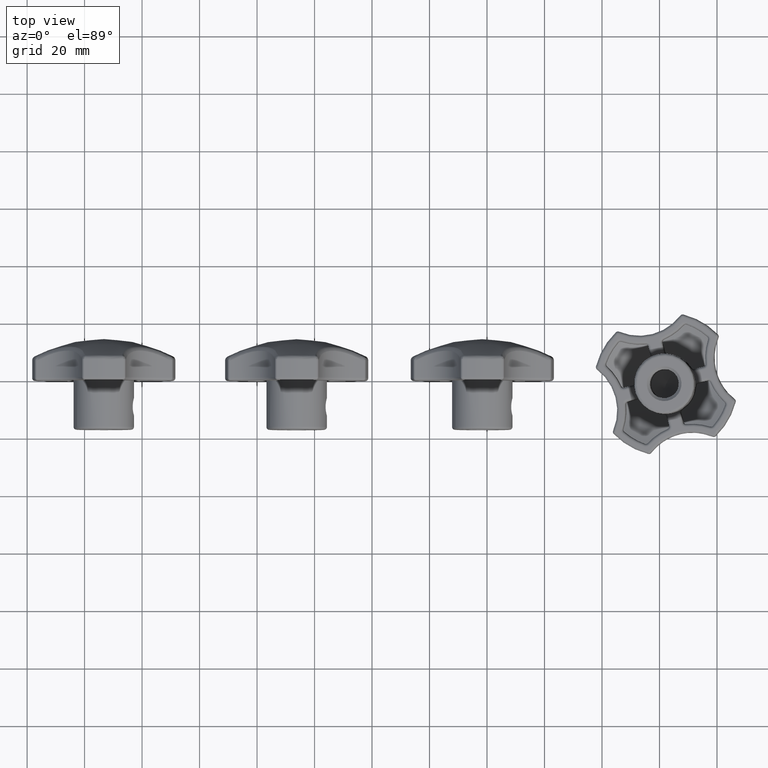
[diagram: clean part render]
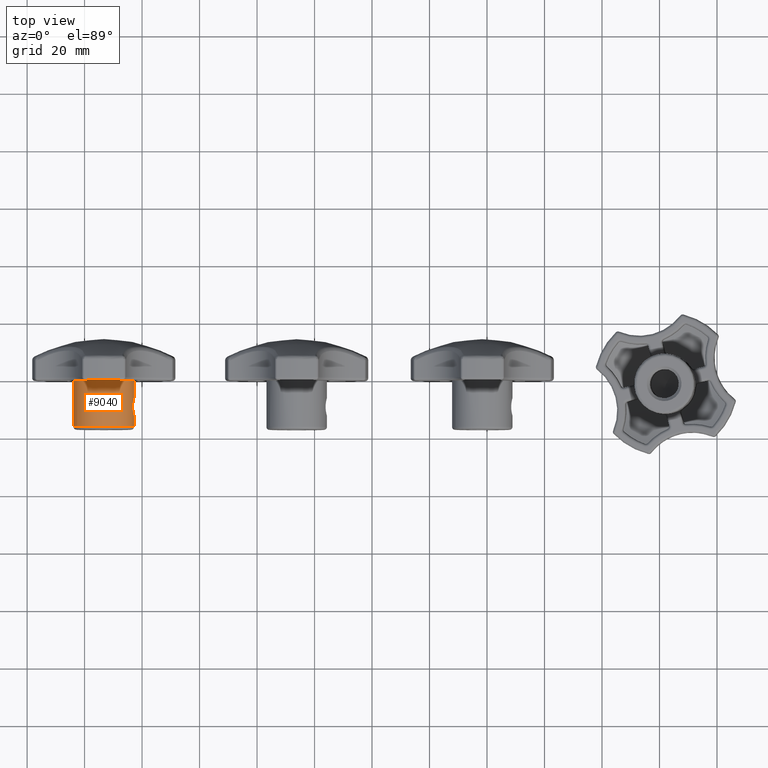
[diagram: same view with one face highlighted and labeled with its STEP entity id]
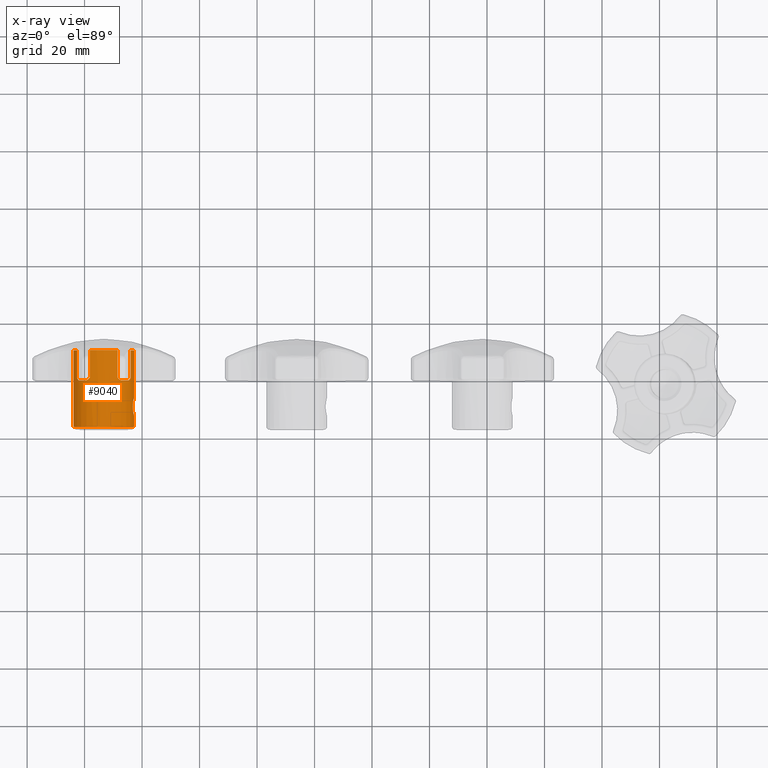
[diagram: x-ray of the same camera — body ghosted, the highlighted face saturated]
A machine part, top view. The second image highlights one B-rep face of the part: STEP entity #9040.
The next image is the same camera in x-ray: the body ghosted, the highlighted face saturated — about 0% of this face is hidden behind the body in this view.
In plain terms, the highlighted cylindrical surface (bore or boss wall) has radius 10.5 mm, axis along (0, 1, 0).
Its self-contained STEP definition (entity closure, byte-faithful):
#339=FACE_BOUND('',#2065,.T.);
#340=FACE_BOUND('',#2066,.T.);
#375=CIRCLE('',#9677,10.5);
#376=CIRCLE('',#9678,10.5);
#377=CIRCLE('',#9679,10.5);
#378=CIRCLE('',#9680,10.5);
#379=CIRCLE('',#9681,10.5);
#380=CIRCLE('',#9682,10.5);
#381=CIRCLE('',#9683,10.5);
#382=CIRCLE('',#9684,10.5);
#383=CIRCLE('',#9685,10.5);
#1179=CYLINDRICAL_SURFACE('',#9676,10.5);
#1432=FACE_OUTER_BOUND('',#2064,.T.);
#2064=EDGE_LOOP('',(#6039,#6040,#6041,#6042,#6043,#6044,#6045,#6046,#6047,
#6048,#6049,#6050,#6051,#6052,#6053,#6054,#6055,#6056,#6057,#6058,#6059,
#6060,#6061,#6062));
#2065=EDGE_LOOP('',(#6063));
#2066=EDGE_LOOP('',(#6064));
#2732=B_SPLINE_CURVE_WITH_KNOTS('',3,(#14191,#14192,#14193,#14194,#14195,
#14196,#14197,#14198,#14199,#14200,#14201,#14202,#14203,#14204,#14205,#14206,
#14207,#14208,#14209,#14210,#14211),.UNSPECIFIED.,.T.,.F.,(4,1,1,1,1,1,
1,1,1,1,1,1,1,1,1,1,1,1,4),(-1.24929405747455,-1.16005876765494,-1.11544112274514,
-1.07082347783533,-0.981588188015721,-0.89235289819611,-0.803117608376499,
-0.758499963466693,-0.713882318556888,-0.624647028737277,-0.535411738917666,
-0.49079409400786,-0.446176449098055,-0.356941159278444,-0.267705869458833,
-0.178470579639222,-0.133852934729416,-0.0892352898196109,1.01192568546677E-16),
 .UNSPECIFIED.);
#2733=B_SPLINE_CURVE_WITH_KNOTS('',3,(#14217,#14218,#14219,#14220,#14221,
#14222,#14223,#14224,#14225,#14226),.UNSPECIFIED.,.F.,.F.,(4,2,2,2,4),(0.312380657515468,
0.339049784358982,0.375862714295916,0.440476614903262,0.440865628322796),
 .UNSPECIFIED.);
#2734=B_SPLINE_CURVE_WITH_KNOTS('',3,(#14234,#14235,#14236,#14237,#14238,
#14239,#14240,#14241,#14242,#14243),.UNSPECIFIED.,.F.,.F.,(4,2,2,2,4),(-0.000447213659651916,
0.,0.0742807769218567,0.116601284004013,0.14726037507309),.UNSPECIFIED.);
#2735=B_SPLINE_CURVE_WITH_KNOTS('',3,(#14247,#14248,#14249,#14250,#14251,
#14252,#14253,#14254,#14255,#14256),.UNSPECIFIED.,.F.,.F.,(4,2,2,2,4),(0.312380654878585,
0.339049781483938,0.375862711092125,0.440476611104976,0.440865624519875),
 .UNSPECIFIED.);
#2736=B_SPLINE_CURVE_WITH_KNOTS('',3,(#14264,#14265,#14266,#14267,#14268,
#14269,#14270,#14271,#14272,#14273),.UNSPECIFIED.,.F.,.F.,(4,2,2,2,4),(-0.000447213664884517,
0.,0.0742808029453884,0.11660133066451,0.147260436684043),.UNSPECIFIED.);
#2737=B_SPLINE_CURVE_WITH_KNOTS('',3,(#14277,#14278,#14279,#14280,#14281,
#14282,#14283,#14284,#14285,#14286),.UNSPECIFIED.,.F.,.F.,(4,2,2,2,4),(0.312381928980434,
0.33905117065849,0.375864259108173,0.440478412403289,0.440867426965773),
 .UNSPECIFIED.);
#2738=B_SPLINE_CURVE_WITH_KNOTS('',3,(#14294,#14295,#14296,#14297,#14298,
#14299,#14300,#14301,#14302,#14303),.UNSPECIFIED.,.F.,.F.,(4,2,2,2,4),(-0.000447213662700822,
0.,0.0742807897796529,0.116601307058186,0.147260405514038),
 .UNSPECIFIED.);
#2739=B_SPLINE_CURVE_WITH_KNOTS('',3,(#14307,#14308,#14309,#14310,#14311,
#14312,#14313,#14314,#14315,#14316),.UNSPECIFIED.,.F.,.F.,(4,2,2,2,4),(0.312381295545614,
0.339050480013902,0.375863489493622,0.440477516877786,0.440866530870201),
 .UNSPECIFIED.);
#2740=B_SPLINE_CURVE_WITH_KNOTS('',3,(#14323,#14324,#14325,#14326,#14327,
#14328,#14329,#14330,#14331,#14332),.UNSPECIFIED.,.F.,.F.,(4,2,2,2,4),(-0.00044721365583282,
0.,0.0742807639072316,0.116601260668674,0.147260344260911),
 .UNSPECIFIED.);
#3064=LINE('',#14228,#3388);
#3065=LINE('',#14232,#3389);
#3066=LINE('',#14258,#3390);
#3067=LINE('',#14262,#3391);
#3068=LINE('',#14288,#3392);
#3069=LINE('',#14292,#3393);
#3070=LINE('',#14318,#3394);
#3071=LINE('',#14322,#3395);
#3388=VECTOR('',#11043,9.51190340879282);
#3389=VECTOR('',#11046,9.51190340879282);
#3390=VECTOR('',#11049,9.51190340879282);
#3391=VECTOR('',#11052,9.51190340879282);
#3392=VECTOR('',#11055,9.51190340879282);
#3393=VECTOR('',#11058,9.51190340879282);
#3394=VECTOR('',#11061,9.51190340879282);
#3395=VECTOR('',#11064,9.51190340879282);
#3711=VERTEX_POINT('',#14167);
#3713=VERTEX_POINT('',#14213);
#3714=VERTEX_POINT('',#14214);
#3715=VERTEX_POINT('',#14216);
#3716=VERTEX_POINT('',#14227);
#3717=VERTEX_POINT('',#14229);
#3718=VERTEX_POINT('',#14231);
#3719=VERTEX_POINT('',#14233);
#3720=VERTEX_POINT('',#14244);
#3721=VERTEX_POINT('',#14246);
#3722=VERTEX_POINT('',#14257);
#3723=VERTEX_POINT('',#14259);
#3724=VERTEX_POINT('',#14261);
#3725=VERTEX_POINT('',#14263);
#3726=VERTEX_POINT('',#14274);
#3727=VERTEX_POINT('',#14276);
#3728=VERTEX_POINT('',#14287);
#3729=VERTEX_POINT('',#14289);
#3730=VERTEX_POINT('',#14291);
#3731=VERTEX_POINT('',#14293);
#3732=VERTEX_POINT('',#14304);
#3733=VERTEX_POINT('',#14306);
#3734=VERTEX_POINT('',#14317);
#3735=VERTEX_POINT('',#14319);
#3736=VERTEX_POINT('',#14321);
#3737=VERTEX_POINT('',#14333);
#4577=EDGE_CURVE('',#3711,#3711,#2732,.T.);
#4578=EDGE_CURVE('',#3713,#3714,#375,.T.);
#4579=EDGE_CURVE('',#3715,#3714,#2733,.F.);
#4580=EDGE_CURVE('',#3716,#3715,#3064,.T.);
#4581=EDGE_CURVE('',#3717,#3716,#376,.T.);
#4582=EDGE_CURVE('',#3718,#3717,#3065,.T.);
#4583=EDGE_CURVE('',#3719,#3718,#2734,.F.);
#4584=EDGE_CURVE('',#3719,#3720,#377,.T.);
#4585=EDGE_CURVE('',#3721,#3720,#2735,.F.);
#4586=EDGE_CURVE('',#3722,#3721,#3066,.T.);
#4587=EDGE_CURVE('',#3723,#3722,#378,.T.);
#4588=EDGE_CURVE('',#3724,#3723,#3067,.T.);
#4589=EDGE_CURVE('',#3725,#3724,#2736,.F.);
#4590=EDGE_CURVE('',#3725,#3726,#379,.T.);
#4591=EDGE_CURVE('',#3727,#3726,#2737,.F.);
#4592=EDGE_CURVE('',#3728,#3727,#3068,.T.);
#4593=EDGE_CURVE('',#3729,#3728,#380,.T.);
#4594=EDGE_CURVE('',#3730,#3729,#3069,.T.);
#4595=EDGE_CURVE('',#3731,#3730,#2738,.F.);
#4596=EDGE_CURVE('',#3731,#3732,#381,.T.);
#4597=EDGE_CURVE('',#3733,#3732,#2739,.F.);
#4598=EDGE_CURVE('',#3734,#3733,#3070,.T.);
#4599=EDGE_CURVE('',#3735,#3734,#382,.T.);
#4600=EDGE_CURVE('',#3736,#3735,#3071,.T.);
#4601=EDGE_CURVE('',#3713,#3736,#2740,.F.);
#4602=EDGE_CURVE('',#3737,#3737,#383,.T.);
#6039=ORIENTED_EDGE('',*,*,#4578,.T.);
#6040=ORIENTED_EDGE('',*,*,#4579,.F.);
#6041=ORIENTED_EDGE('',*,*,#4580,.F.);
#6042=ORIENTED_EDGE('',*,*,#4581,.F.);
#6043=ORIENTED_EDGE('',*,*,#4582,.F.);
#6044=ORIENTED_EDGE('',*,*,#4583,.F.);
#6045=ORIENTED_EDGE('',*,*,#4584,.T.);
#6046=ORIENTED_EDGE('',*,*,#4585,.F.);
#6047=ORIENTED_EDGE('',*,*,#4586,.F.);
#6048=ORIENTED_EDGE('',*,*,#4587,.F.);
#6049=ORIENTED_EDGE('',*,*,#4588,.F.);
#6050=ORIENTED_EDGE('',*,*,#4589,.F.);
#6051=ORIENTED_EDGE('',*,*,#4590,.T.);
#6052=ORIENTED_EDGE('',*,*,#4591,.F.);
#6053=ORIENTED_EDGE('',*,*,#4592,.F.);
#6054=ORIENTED_EDGE('',*,*,#4593,.F.);
#6055=ORIENTED_EDGE('',*,*,#4594,.F.);
#6056=ORIENTED_EDGE('',*,*,#4595,.F.);
#6057=ORIENTED_EDGE('',*,*,#4596,.T.);
#6058=ORIENTED_EDGE('',*,*,#4597,.F.);
#6059=ORIENTED_EDGE('',*,*,#4598,.F.);
#6060=ORIENTED_EDGE('',*,*,#4599,.F.);
#6061=ORIENTED_EDGE('',*,*,#4600,.F.);
#6062=ORIENTED_EDGE('',*,*,#4601,.F.);
#6063=ORIENTED_EDGE('',*,*,#4602,.F.);
#6064=ORIENTED_EDGE('',*,*,#4577,.F.);
#9040=ADVANCED_FACE('',(#1432,#339,#340),#1179,.T.);
#9676=AXIS2_PLACEMENT_3D('',#14212,#11039,#11040);
#9677=AXIS2_PLACEMENT_3D('',#14215,#11041,#11042);
#9678=AXIS2_PLACEMENT_3D('',#14230,#11044,#11045);
#9679=AXIS2_PLACEMENT_3D('',#14245,#11047,#11048);
#9680=AXIS2_PLACEMENT_3D('',#14260,#11050,#11051);
#9681=AXIS2_PLACEMENT_3D('',#14275,#11053,#11054);
#9682=AXIS2_PLACEMENT_3D('',#14290,#11056,#11057);
#9683=AXIS2_PLACEMENT_3D('',#14305,#11059,#11060);
#9684=AXIS2_PLACEMENT_3D('',#14320,#11062,#11063);
#9685=AXIS2_PLACEMENT_3D('',#14334,#11065,#11066);
#11039=DIRECTION('center_axis',(0.,1.,0.));
#11040=DIRECTION('ref_axis',(-1.,0.,-2.94936186321761E-16));
#11041=DIRECTION('center_axis',(0.,-1.,0.));
#11042=DIRECTION('ref_axis',(-1.,0.,-2.94936186321761E-16));
#11043=DIRECTION('',(0.,-1.,0.));
#11044=DIRECTION('center_axis',(0.,1.,0.));
#11045=DIRECTION('ref_axis',(-1.,2.11471052309554E-16,-2.94936186321761E-16));
#11046=DIRECTION('',(0.,1.,0.));
#11047=DIRECTION('center_axis',(0.,-1.,0.));
#11048=DIRECTION('ref_axis',(-1.,0.,-2.94936186321761E-16));
#11049=DIRECTION('',(0.,-1.,0.));
#11050=DIRECTION('center_axis',(0.,1.,0.));
#11051=DIRECTION('ref_axis',(-1.,2.11471052309554E-16,-2.94936186321761E-16));
#11052=DIRECTION('',(0.,1.,0.));
#11053=DIRECTION('center_axis',(0.,-1.,0.));
#11054=DIRECTION('ref_axis',(-1.,0.,-2.94936186321761E-16));
#11055=DIRECTION('',(0.,-1.,0.));
#11056=DIRECTION('center_axis',(0.,1.,0.));
#11057=DIRECTION('ref_axis',(-1.,2.11471052309554E-16,-2.94936186321761E-16));
#11058=DIRECTION('',(0.,1.,0.));
#11059=DIRECTION('center_axis',(0.,-1.,0.));
#11060=DIRECTION('ref_axis',(-1.,0.,-2.94936186321761E-16));
#11061=DIRECTION('',(0.,-1.,0.));
#11062=DIRECTION('center_axis',(0.,1.,0.));
#11063=DIRECTION('ref_axis',(-1.,2.11471052309554E-16,-2.94936186321761E-16));
#11064=DIRECTION('',(0.,1.,0.));
#11065=DIRECTION('center_axis',(0.,-1.,0.));
#11066=DIRECTION('ref_axis',(-1.,0.,-2.94936186321761E-16));
#14167=CARTESIAN_POINT('',(10.0512168517121,-9.,-3.0369458012713));
#14191=CARTESIAN_POINT('Ctrl Pts',(10.0515216057304,-8.9999416599047,-3.03657943653946));
#14192=CARTESIAN_POINT('Ctrl Pts',(10.0515206552678,-8.55581045989731,-3.03658211747961));
#14193=CARTESIAN_POINT('Ctrl Pts',(10.1000745101209,-7.84008384361665,-2.88793750852319));
#14194=CARTESIAN_POINT('Ctrl Pts',(10.2276293243301,-7.05554598891119,-2.38731063387096));
#14195=CARTESIAN_POINT('Ctrl Pts',(10.3596234069126,-6.42920938572341,-1.78135727249178));
#14196=CARTESIAN_POINT('Ctrl Pts',(10.5079003027703,-5.90331569133743,-0.68226321735798));
#14197=CARTESIAN_POINT('Ctrl Pts',(10.5082923227495,-5.90236329489863,0.684532958346303));
#14198=CARTESIAN_POINT('Ctrl Pts',(10.3590043911443,-6.43486868840089,1.78003294970373));
#14199=CARTESIAN_POINT('Ctrl Pts',(10.2271433409999,-7.05805787224593,2.38755972829482));
#14200=CARTESIAN_POINT('Ctrl Pts',(10.0997953997754,-7.85385852149665,2.88647714541576));
#14201=CARTESIAN_POINT('Ctrl Pts',(10.0186211095897,-8.99800965901442,3.13621064360771));
#14202=CARTESIAN_POINT('Ctrl Pts',(10.0995881041685,-10.1463149886719,2.88693717678813));
#14203=CARTESIAN_POINT('Ctrl Pts',(10.2273702047573,-10.9432055882455,2.38771993454667));
#14204=CARTESIAN_POINT('Ctrl Pts',(10.3589943623131,-11.5651479160315,1.78041663501963));
#14205=CARTESIAN_POINT('Ctrl Pts',(10.5076320880136,-12.0948155157355,0.682804149783255));
#14206=CARTESIAN_POINT('Ctrl Pts',(10.507975740931,-12.0970261644614,-0.68202430757717));
#14207=CARTESIAN_POINT('Ctrl Pts',(10.359492892679,-11.5702217958122,-1.78169156770574));
#14208=CARTESIAN_POINT('Ctrl Pts',(10.2276065689611,-10.9443331541025,-2.38736124748985));
#14209=CARTESIAN_POINT('Ctrl Pts',(10.1000205922427,-10.1596536046015,-2.88807402360374));
#14210=CARTESIAN_POINT('Ctrl Pts',(10.051522556193,-9.44407285991209,-3.0365767555993));
#14211=CARTESIAN_POINT('Ctrl Pts',(10.0515216057304,-8.9999416599047,-3.03657943653946));
#14212=CARTESIAN_POINT('Origin',(0.,-17.,0.));
#14213=CARTESIAN_POINT('',(-6.21931680428899,-2.22044604925031E-15,8.459911257684));
#14214=CARTESIAN_POINT('',(-8.45991125768401,-2.22044604925031E-15,6.21931680428899));
#14215=CARTESIAN_POINT('Origin',(0.,-2.22044604925031E-15,0.));
#14216=CARTESIAN_POINT('',(-9.33207169382273,0.999999999999996,4.81273704884783));
#14217=CARTESIAN_POINT('Ctrl Pts',(-8.45991125768401,-3.60822483003176E-15,
6.21931680428899));
#14218=CARTESIAN_POINT('Ctrl Pts',(-8.55518898029496,-2.64899905372418E-15,
6.08971397113422));
#14219=CARTESIAN_POINT('Ctrl Pts',(-8.64598805238888,0.0315098365956701,
5.95986145560081));
#14220=CARTESIAN_POINT('Ctrl Pts',(-8.84680505407189,0.162468613430624,
5.65932634621916));
#14221=CARTESIAN_POINT('Ctrl Pts',(-8.94162917168248,0.276865537629745,
5.50621393394023));
#14222=CARTESIAN_POINT('Ctrl Pts',(-9.14686295965302,0.580858076407662,
5.16236141360538));
#14223=CARTESIAN_POINT('Ctrl Pts',(-9.25220554991797,0.817750946926769,
4.96748959551049));
#14224=CARTESIAN_POINT('Ctrl Pts',(-9.33112747569181,0.997844431498295,
4.81456759148779));
#14225=CARTESIAN_POINT('Ctrl Pts',(-9.33159965257467,0.998922216859679,
4.81365235394858));
#14226=CARTESIAN_POINT('Ctrl Pts',(-9.33207169382273,0.999999999999997,
4.81273704884783));
#14227=CARTESIAN_POINT('',(-9.33207169382273,10.5119034087928,4.81273704884783));
#14228=CARTESIAN_POINT('',(-9.33207169382273,-17.,4.81273704884783));
#14229=CARTESIAN_POINT('',(-9.33207169382273,10.5119034087928,-4.81273704884784));
#14230=CARTESIAN_POINT('Origin',(0.,10.5119034087928,0.));
#14231=CARTESIAN_POINT('',(-9.33207169382273,0.999999999999996,-4.81273704884784));
#14232=CARTESIAN_POINT('',(-9.33207169382273,-17.,-4.81273704884784));
#14233=CARTESIAN_POINT('',(-8.459911257684,-2.22044604925031E-15,-6.21931680428899));
#14234=CARTESIAN_POINT('Ctrl Pts',(-9.33207169382273,0.999999999999997,
-4.81273704884784));
#14235=CARTESIAN_POINT('Ctrl Pts',(-9.3315996525752,0.998922216860919,-4.81365235394754));
#14236=CARTESIAN_POINT('Ctrl Pts',(-9.33112747569124,0.997844431497012,
-4.81456759148888));
#14237=CARTESIAN_POINT('Ctrl Pts',(-9.25220554978811,0.817750946630524,
-4.96748959576211));
#14238=CARTESIAN_POINT('Ctrl Pts',(-9.14686295956824,0.580858076282097,
-5.16236141374742));
#14239=CARTESIAN_POINT('Ctrl Pts',(-8.94162917168245,0.276865537629719,
-5.50621393394027));
#14240=CARTESIAN_POINT('Ctrl Pts',(-8.84680505407186,0.162468613430612,
-5.65932634621919));
#14241=CARTESIAN_POINT('Ctrl Pts',(-8.64598805238887,0.0315098365956695,
-5.95986145560082));
#14242=CARTESIAN_POINT('Ctrl Pts',(-8.55518898029495,-2.84262404829559E-15,
-6.08971397113423));
#14243=CARTESIAN_POINT('Ctrl Pts',(-8.459911257684,-3.60822483003176E-15,
-6.21931680428899));
#14244=CARTESIAN_POINT('',(-6.21931680428898,-2.22044604925031E-15,-8.45991125768401));
#14245=CARTESIAN_POINT('Origin',(0.,-2.22044604925031E-15,0.));
#14246=CARTESIAN_POINT('',(-4.81273704884783,0.999999999999996,-9.33207169382273));
#14247=CARTESIAN_POINT('Ctrl Pts',(-6.21931680428898,-3.60822483003176E-15,
-8.45991125768401));
#14248=CARTESIAN_POINT('Ctrl Pts',(-6.08971397113422,-2.42310322672421E-15,
-8.55518898029496));
#14249=CARTESIAN_POINT('Ctrl Pts',(-5.9598614556008,0.0315098365956704,
-8.64598805238888));
#14250=CARTESIAN_POINT('Ctrl Pts',(-5.65932634621916,0.162468613430623,
-8.84680505407188));
#14251=CARTESIAN_POINT('Ctrl Pts',(-5.50621393394023,0.276865537629743,
-8.94162917168248));
#14252=CARTESIAN_POINT('Ctrl Pts',(-5.16236141366463,0.58085807635528,-9.14686295961766));
#14253=CARTESIAN_POINT('Ctrl Pts',(-4.96748959561549,0.817750946803153,
-9.25220554986378));
#14254=CARTESIAN_POINT('Ctrl Pts',(-4.81456759148981,0.997844431495908,
-9.33112747569076));
#14255=CARTESIAN_POINT('Ctrl Pts',(-4.81365235394673,0.998922216861864,
-9.33159965257562));
#14256=CARTESIAN_POINT('Ctrl Pts',(-4.81273704884783,0.999999999999997,
-9.33207169382273));
#14257=CARTESIAN_POINT('',(-4.81273704884783,10.5119034087928,-9.33207169382273));
#14258=CARTESIAN_POINT('',(-4.81273704884783,-17.,-9.33207169382273));
#14259=CARTESIAN_POINT('',(4.81273704884784,10.5119034087928,-9.33207169382273));
#14260=CARTESIAN_POINT('Origin',(0.,10.5119034087928,0.));
#14261=CARTESIAN_POINT('',(4.81273704884784,0.999999999999996,-9.33207169382273));
#14262=CARTESIAN_POINT('',(4.81273704884784,-17.,-9.33207169382273));
#14263=CARTESIAN_POINT('',(6.21931680428899,-2.22044604925031E-15,-8.459911257684));
#14264=CARTESIAN_POINT('Ctrl Pts',(4.81273704884784,0.999999999999997,-9.33207169382273));
#14265=CARTESIAN_POINT('Ctrl Pts',(4.81365235395825,0.998922216848309,-9.33159965256968));
#14266=CARTESIAN_POINT('Ctrl Pts',(4.81456759147839,0.997844431509163,-9.33112747569666));
#14267=CARTESIAN_POINT('Ctrl Pts',(4.9674896490203,0.817750883917876,-9.25220552230195));
#14268=CARTESIAN_POINT('Ctrl Pts',(5.16236144382195,0.580858049693853,-9.14686294161778));
#14269=CARTESIAN_POINT('Ctrl Pts',(5.50621393394031,0.276865537629682,-8.94162917168243));
#14270=CARTESIAN_POINT('Ctrl Pts',(5.65932634621923,0.162468613430596,-8.84680505407184));
#14271=CARTESIAN_POINT('Ctrl Pts',(5.95986145560082,0.0315098365956695,
-8.64598805238887));
#14272=CARTESIAN_POINT('Ctrl Pts',(6.08971397113423,-2.84262404829559E-15,
-8.55518898029495));
#14273=CARTESIAN_POINT('Ctrl Pts',(6.219316804289,-3.60822483003176E-15,
-8.459911257684));
#14274=CARTESIAN_POINT('',(8.45991125768401,-2.22044604925031E-15,-6.21931680428898));
#14275=CARTESIAN_POINT('Origin',(0.,-2.22044604925031E-15,0.));
#14276=CARTESIAN_POINT('',(9.33207169382273,0.999999999999996,-4.81273704884783));
#14277=CARTESIAN_POINT('Ctrl Pts',(8.45991125768401,-3.60822483003176E-15,
-6.21931680428898));
#14278=CARTESIAN_POINT('Ctrl Pts',(8.55518898029497,-2.48764489158135E-15,
-6.08971397113421));
#14279=CARTESIAN_POINT('Ctrl Pts',(8.64598805238889,0.0315098365956705,
-5.9598614556008));
#14280=CARTESIAN_POINT('Ctrl Pts',(8.84680505407196,0.162468613430673,-5.65932634621904));
#14281=CARTESIAN_POINT('Ctrl Pts',(8.94162917168256,0.276865537629859,-5.50621393394009));
#14282=CARTESIAN_POINT('Ctrl Pts',(9.14686290798765,0.580857999880854,-5.16236150016649));
#14283=CARTESIAN_POINT('Ctrl Pts',(9.25220547080677,0.81775076642601,-4.96748974879923));
#14284=CARTESIAN_POINT('Ctrl Pts',(9.33112747570872,0.997844431536284,-4.81456759145501));
#14285=CARTESIAN_POINT('Ctrl Pts',(9.33159965255782,0.998922216821201,-4.81365235398126));
#14286=CARTESIAN_POINT('Ctrl Pts',(9.33207169382273,0.999999999999997,-4.81273704884783));
#14287=CARTESIAN_POINT('',(9.33207169382273,10.5119034087928,-4.81273704884783));
#14288=CARTESIAN_POINT('',(9.33207169382273,-17.,-4.81273704884783));
#14289=CARTESIAN_POINT('',(9.33207169382273,10.5119034087928,4.81273704884785));
#14290=CARTESIAN_POINT('Origin',(0.,10.5119034087928,0.));
#14291=CARTESIAN_POINT('',(9.33207169382273,0.999999999999996,4.81273704884784));
#14292=CARTESIAN_POINT('',(9.33207169382273,-17.,4.81273704884784));
#14293=CARTESIAN_POINT('',(8.459911257684,-2.22044604925031E-15,6.21931680428899));
#14294=CARTESIAN_POINT('Ctrl Pts',(9.33207169382273,0.999999999999997,4.81273704884784));
#14295=CARTESIAN_POINT('Ctrl Pts',(9.33159965257199,0.998922216853571,4.81365235395378));
#14296=CARTESIAN_POINT('Ctrl Pts',(9.33112747569449,0.99784443150431,4.8145675914826));
#14297=CARTESIAN_POINT('Ctrl Pts',(9.25220553620773,0.817750915645432,4.96748962207596));
#14298=CARTESIAN_POINT('Ctrl Pts',(9.14686295069928,0.580858063145385,5.16236142860664));
#14299=CARTESIAN_POINT('Ctrl Pts',(8.94162917168242,0.276865537629664,5.50621393394033));
#14300=CARTESIAN_POINT('Ctrl Pts',(8.84680505407182,0.162468613430589,5.65932634621925));
#14301=CARTESIAN_POINT('Ctrl Pts',(8.64598805238888,0.0315098365956695,
5.95986145560082));
#14302=CARTESIAN_POINT('Ctrl Pts',(8.55518898029495,-2.71354071858132E-15,
6.08971397113423));
#14303=CARTESIAN_POINT('Ctrl Pts',(8.459911257684,-3.60822483003176E-15,
6.21931680428899));
#14304=CARTESIAN_POINT('',(6.21931680428899,-2.22044604925031E-15,8.45991125768401));
#14305=CARTESIAN_POINT('Origin',(0.,-2.22044604925031E-15,0.));
#14306=CARTESIAN_POINT('',(4.81273704884783,0.999999999999996,9.33207169382273));
#14307=CARTESIAN_POINT('Ctrl Pts',(6.21931680428899,-3.60822483003176E-15,
8.45991125768401));
#14308=CARTESIAN_POINT('Ctrl Pts',(6.08971397113422,-2.55218655643848E-15,
8.55518898029496));
#14309=CARTESIAN_POINT('Ctrl Pts',(5.95986145560081,0.0315098365956697,
8.64598805238888));
#14310=CARTESIAN_POINT('Ctrl Pts',(5.65932634621918,0.162468613430615,8.84680505407187));
#14311=CARTESIAN_POINT('Ctrl Pts',(5.50621393394025,0.276865537629724,8.94162917168246));
#14312=CARTESIAN_POINT('Ctrl Pts',(5.16236145712243,0.580858037935184,9.14686293367918));
#14313=CARTESIAN_POINT('Ctrl Pts',(4.96748967257368,0.817750856183233,9.25220551014622));
#14314=CARTESIAN_POINT('Ctrl Pts',(4.81456759147179,0.997844431516827,9.33112747570006));
#14315=CARTESIAN_POINT('Ctrl Pts',(4.81365235396461,0.998922216840801,9.3315996525664));
#14316=CARTESIAN_POINT('Ctrl Pts',(4.81273704884783,0.999999999999997,9.33207169382273));
#14317=CARTESIAN_POINT('',(4.81273704884783,10.5119034087928,9.33207169382273));
#14318=CARTESIAN_POINT('',(4.81273704884783,-17.,9.33207169382273));
#14319=CARTESIAN_POINT('',(-4.81273704884785,10.5119034087928,9.33207169382273));
#14320=CARTESIAN_POINT('Origin',(0.,10.5119034087928,0.));
#14321=CARTESIAN_POINT('',(-4.81273704884784,0.999999999999996,9.33207169382273));
#14322=CARTESIAN_POINT('',(-4.81273704884784,-17.,9.33207169382273));
#14323=CARTESIAN_POINT('Ctrl Pts',(-4.81273704884784,0.999999999999997,
9.33207169382273));
#14324=CARTESIAN_POINT('Ctrl Pts',(-4.81365235393972,0.998922216870123,
9.33159965257924));
#14325=CARTESIAN_POINT('Ctrl Pts',(-4.81456759149688,0.997844431487699,
9.33112747568712));
#14326=CARTESIAN_POINT('Ctrl Pts',(-4.96748956912746,0.817750977993411,
9.25220556353405));
#14327=CARTESIAN_POINT('Ctrl Pts',(-5.16236139870696,0.580858089579035,
9.14686296854537));
#14328=CARTESIAN_POINT('Ctrl Pts',(-5.50621393394027,0.276865537629713,
8.94162917168245));
#14329=CARTESIAN_POINT('Ctrl Pts',(-5.6593263462192,0.16246861343061,8.84680505407186));
#14330=CARTESIAN_POINT('Ctrl Pts',(-5.95986145560082,0.0315098365956701,
8.64598805238888));
#14331=CARTESIAN_POINT('Ctrl Pts',(-6.08971397113423,-2.71354071858132E-15,
8.55518898029495));
#14332=CARTESIAN_POINT('Ctrl Pts',(-6.21931680428899,-3.60822483003176E-15,
8.459911257684));
#14333=CARTESIAN_POINT('',(10.5,-16.,4.38270909548322E-15));
#14334=CARTESIAN_POINT('Origin',(0.,-16.,0.));